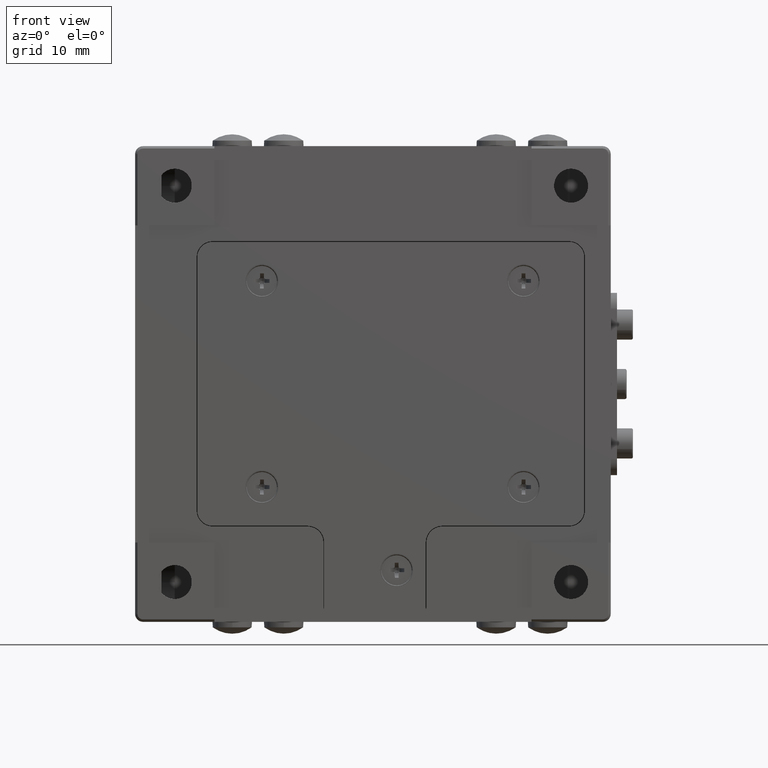
[diagram: clean part render]
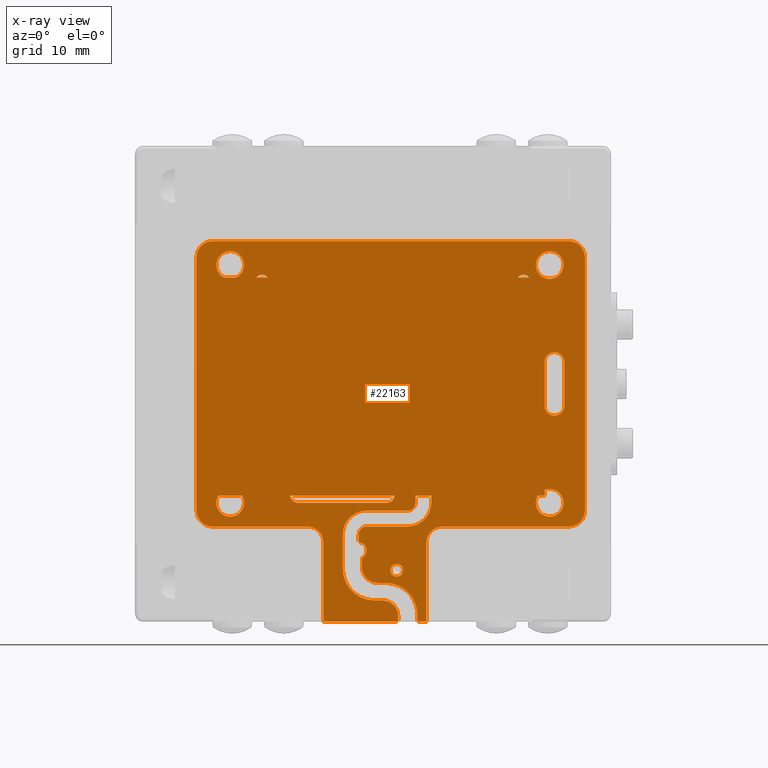
[diagram: x-ray — body ghosted, one internal face saturated and labeled with its STEP entity id]
A machine part, front view, then the same camera in x-ray: the body is ghosted and one INTERNAL B-rep face — a face not visible from any outside direction — is saturated and labeled: STEP entity #22163.
In plain terms, the highlighted planar face has unit normal (0, -1, 0).
Its self-contained STEP definition (entity closure, byte-faithful):
#24 = EDGE_CURVE ( 'NONE', #22137, #21360, #21214, .T. ) ;
#46 = FACE_BOUND ( 'NONE', #323, .T. ) ;
#59 = ORIENTED_EDGE ( 'NONE', *, *, #9527, .F. ) ;
#83 = DIRECTION ( 'NONE',  ( 0.000000000000000000, 0.000000000000000000, -1.000000000000000000 ) ) ;
#89 = EDGE_CURVE ( 'NONE', #21244, #18895, #23610, .T. ) ;
#93 = CARTESIAN_POINT ( 'NONE',  ( 34.37202194154569668, 3.250000000000000000, -47.98835187819889825 ) ) ;
#105 = CIRCLE ( 'NONE', #8555, 2.000000000000000000 ) ;
#111 = LINE ( 'NONE', #7301, #13982 ) ;
#156 = ORIENTED_EDGE ( 'NONE', *, *, #23745, .T. ) ;
#249 = CIRCLE ( 'NONE', #19995, 0.3000000000000016542 ) ;
#323 = EDGE_LOOP ( 'NONE', ( #16622, #18211, #11648, #5550 ) ) ;
#367 = DIRECTION ( 'NONE',  ( 0.000000000000000000, 0.000000000000000000, 1.000000000000000000 ) ) ;
#398 = LINE ( 'NONE', #20981, #2266 ) ;
#415 = VECTOR ( 'NONE', #8811, 1000.000000000000000 ) ;
#439 = CARTESIAN_POINT ( 'NONE',  ( 34.37202194154569668, 3.250000000000000000, -45.98835187819889825 ) ) ;
#447 = CIRCLE ( 'NONE', #4092, 1.250000000000001110 ) ;
#548 = CARTESIAN_POINT ( 'NONE',  ( 52.29999999999999716, 3.250000000000000000, -45.00000000000000000 ) ) ;
#652 = DIRECTION ( 'NONE',  ( 0.000000000000000000, 1.000000000000000000, 0.000000000000000000 ) ) ;
#717 = DIRECTION ( 'NONE',  ( 1.000000000000000000, 0.000000000000000000, 0.000000000000000000 ) ) ;
#781 = VECTOR ( 'NONE', #15501, 1000.000000000000000 ) ;
#840 = DIRECTION ( 'NONE',  ( 0.000000000000000000, 0.000000000000000000, -1.000000000000000000 ) ) ;
#848 = CARTESIAN_POINT ( 'NONE',  ( 48.31890534461459907, 3.250000000000000000, -16.58034529621910025 ) ) ;
#880 = DIRECTION ( 'NONE',  ( 0.000000000000000000, -1.000000000000000000, 0.000000000000000000 ) ) ;
#921 = VERTEX_POINT ( 'NONE', #1974 ) ;
#966 = VERTEX_POINT ( 'NONE', #19758 ) ;
#1002 = DIRECTION ( 'NONE',  ( 0.000000000000000000, -1.000000000000000000, 0.000000000000000000 ) ) ;
#1008 = VERTEX_POINT ( 'NONE', #2349 ) ;
#1025 = DIRECTION ( 'NONE',  ( 0.000000000000000000, -1.000000000000000000, 0.000000000000000000 ) ) ;
#1130 = EDGE_CURVE ( 'NONE', #11185, #5857, #23332, .T. ) ;
#1223 = DIRECTION ( 'NONE',  ( 0.000000000000000000, 0.000000000000000000, -1.000000000000000000 ) ) ;
#1267 = EDGE_CURVE ( 'NONE', #14080, #23092, #4749, .T. ) ;
#1313 = CARTESIAN_POINT ( 'NONE',  ( 7.750000000000000000, 3.250000000000000000, -14.00000000000000000 ) ) ;
#1369 = CARTESIAN_POINT ( 'NONE',  ( 28.50000000000000000, 3.250000000000000000, -49.73508893593270130 ) ) ;
#1372 = ORIENTED_EDGE ( 'NONE', *, *, #3487, .F. ) ;
#1418 = CIRCLE ( 'NONE', #19946, 3.999999999999996447 ) ;
#1446 = AXIS2_PLACEMENT_3D ( 'NONE', #11561, #16897, #7285 ) ;
#1456 = VECTOR ( 'NONE', #717, 1000.000000000000000 ) ;
#1560 = VERTEX_POINT ( 'NONE', #10480 ) ;
#1588 = DIRECTION ( 'NONE',  ( 0.000000000000000000, 0.000000000000000000, -1.000000000000000000 ) ) ;
#1596 = DIRECTION ( 'NONE',  ( 1.000000000000000000, 0.000000000000000000, 0.000000000000000000 ) ) ;
#1605 = EDGE_CURVE ( 'NONE', #17248, #11185, #14561, .T. ) ;
#1640 = VERTEX_POINT ( 'NONE', #16051 ) ;
#1799 = DIRECTION ( 'NONE',  ( -1.000000000000000000, 0.000000000000000000, 0.000000000000000000 ) ) ;
#1804 = CARTESIAN_POINT ( 'NONE',  ( 29.19999999999999929, 3.250000000000000000, -48.98835187819890535 ) ) ;
#1857 = CARTESIAN_POINT ( 'NONE',  ( 23.75000000000000000, 3.250000000000000000, -50.00000000000000000 ) ) ;
#1863 = LINE ( 'NONE', #3750, #9368 ) ;
#1875 = VERTEX_POINT ( 'NONE', #5935 ) ;
#1948 = FACE_BOUND ( 'NONE', #2645, .T. ) ;
#1974 = CARTESIAN_POINT ( 'NONE',  ( 28.43076923076925411, 3.250000000000000000, -50.02699148917899663 ) ) ;
#2008 = LINE ( 'NONE', #17408, #1456 ) ;
#2014 = LINE ( 'NONE', #15260, #21032 ) ;
#2082 = EDGE_CURVE ( 'NONE', #11596, #13527, #14617, .T. ) ;
#2108 = EDGE_CURVE ( 'NONE', #5857, #1875, #6144, .T. ) ;
#2133 = CARTESIAN_POINT ( 'NONE',  ( 52.29999999999999716, 3.250000000000000000, -43.25000000000000000 ) ) ;
#2165 = EDGE_CURVE ( 'NONE', #11688, #921, #249, .T. ) ;
#2181 = EDGE_CURVE ( 'NONE', #19973, #9801, #7885, .T. ) ;
#2195 = VECTOR ( 'NONE', #1596, 1000.000000000000000 ) ;
#2229 = VERTEX_POINT ( 'NONE', #1857 ) ;
#2266 = VECTOR ( 'NONE', #1799, 1000.000000000000000 ) ;
#2270 = CIRCLE ( 'NONE', #9902, 4.000000000000003553 ) ;
#2279 = DIRECTION ( 'NONE',  ( -1.000000000000000000, 0.000000000000000000, -1.062075597536819908E-16 ) ) ;
#2349 = CARTESIAN_POINT ( 'NONE',  ( 54.14999999999999858, 3.250000000000000000, -27.24999999934235007 ) ) ;
#2411 = LINE ( 'NONE', #10077, #24530 ) ;
#2432 = ORIENTED_EDGE ( 'NONE', *, *, #10014, .F. ) ;
#2446 = VERTEX_POINT ( 'NONE', #4854 ) ;
#2497 = VERTEX_POINT ( 'NONE', #14325 ) ;
#2547 = CARTESIAN_POINT ( 'NONE',  ( 19.55411604357869848, 3.250000000000000000, -44.09063743896764720 ) ) ;
#2591 = CARTESIAN_POINT ( 'NONE',  ( 30.20000000000000284, 3.250000000000000000, -57.30586225072890016 ) ) ;
#2592 = DIRECTION ( 'NONE',  ( 0.000000000000000000, -1.000000000000000000, 0.000000000000000000 ) ) ;
#2645 = EDGE_LOOP ( 'NONE', ( #3088, #10710 ) ) ;
#2654 = DIRECTION ( 'NONE',  ( 0.000000000000000000, 0.000000000000000000, 1.000000000000000000 ) ) ;
#2668 = DIRECTION ( 'NONE',  ( 0.000000000000000000, 1.000000000000000000, 0.000000000000000000 ) ) ;
#2674 = EDGE_CURVE ( 'NONE', #17248, #23886, #9391, .T. ) ;
#2694 = CARTESIAN_POINT ( 'NONE',  ( 13.49517882963634108, 3.250000000000000000, -44.09063743896764720 ) ) ;
#2784 = AXIS2_PLACEMENT_3D ( 'NONE', #5455, #7100, #22903 ) ;
#2907 = DIRECTION ( 'NONE',  ( 0.000000000000000000, -1.000000000000000000, 0.000000000000000000 ) ) ;
#2979 = DIRECTION ( 'NONE',  ( -6.308085367188390438E-15, 0.000000000000000000, 1.000000000000000000 ) ) ;
#2981 = VERTEX_POINT ( 'NONE', #19984 ) ;
#2982 = LINE ( 'NONE', #14702, #19149 ) ;
#3003 = DIRECTION ( 'NONE',  ( 0.000000000000000000, -1.000000000000000000, 0.000000000000000000 ) ) ;
#3031 = CARTESIAN_POINT ( 'NONE',  ( 56.75000000000000000, 3.250000000000000000, -48.00000000000000000 ) ) ;
#3063 = CIRCLE ( 'NONE', #15948, 0.7999999999999882760 ) ;
#3079 = DIRECTION ( 'NONE',  ( 1.000000000000000000, 0.000000000000000000, 0.000000000000000000 ) ) ;
#3088 = ORIENTED_EDGE ( 'NONE', *, *, #8812, .T. ) ;
#3130 = VERTEX_POINT ( 'NONE', #6963 ) ;
#3167 = CARTESIAN_POINT ( 'NONE',  ( 12.00000000000000000, 3.250000000000000000, -45.00000000000000000 ) ) ;
#3196 = AXIS2_PLACEMENT_3D ( 'NONE', #6927, #2907, #18804 ) ;
#3232 = VERTEX_POINT ( 'NONE', #21961 ) ;
#3326 = CARTESIAN_POINT ( 'NONE',  ( 7.228523424522479424, 3.250000000000000000, -16.58034529621910025 ) ) ;
#3350 = CARTESIAN_POINT ( 'NONE',  ( 7.228523424522479424, 3.250000000000000000, -44.09063743896764720 ) ) ;
#3354 = CARTESIAN_POINT ( 'NONE',  ( 26.20000000000000284, 3.250000000000000000, -51.00000000000000000 ) ) ;
#3358 = DIRECTION ( 'NONE',  ( 0.000000000000000000, 0.000000000000000000, -1.000000000000000000 ) ) ;
#3468 = EDGE_CURVE ( 'NONE', #14080, #7985, #23031, .T. ) ;
#3477 = AXIS2_PLACEMENT_3D ( 'NONE', #17011, #5503, #7512 ) ;
#3487 = EDGE_CURVE ( 'NONE', #20598, #15099, #11384, .T. ) ;
#3561 = CARTESIAN_POINT ( 'NONE',  ( 23.75000000000000000, 3.250000000000000000, -60.00000000000000000 ) ) ;
#3592 = CARTESIAN_POINT ( 'NONE',  ( 35.37202194154569668, 3.250000000000000000, -42.50000000000000000 ) ) ;
#3750 = CARTESIAN_POINT ( 'NONE',  ( 30.59999999999999787, 3.250000000000000000, -55.10618472869440154 ) ) ;
#3765 = CARTESIAN_POINT ( 'NONE',  ( 31.19999999999999929, 3.250000000000000000, -59.30586225072890016 ) ) ;
#3803 = LINE ( 'NONE', #9481, #4524 ) ;
#3825 = FACE_OUTER_BOUND ( 'NONE', #23667, .T. ) ;
#3884 = DIRECTION ( 'NONE',  ( 0.000000000000000000, -1.000000000000000000, 0.000000000000000000 ) ) ;
#3933 = CARTESIAN_POINT ( 'NONE',  ( 26.20000000000000284, 3.250000000000000000, -48.98835187819890535 ) ) ;
#3950 = CARTESIAN_POINT ( 'NONE',  ( 30.20000000000000284, 3.250000000000000000, -53.30586225072890016 ) ) ;
#3957 = DIRECTION ( 'NONE',  ( 0.000000000000000000, 0.000000000000000000, -1.000000000000000000 ) ) ;
#4092 = AXIS2_PLACEMENT_3D ( 'NONE', #5282, #1025, #22353 ) ;
#4102 = CIRCLE ( 'NONE', #21450, 0.7999999999999882760 ) ;
#4122 = DIRECTION ( 'NONE',  ( 0.000000000000000000, 0.000000000000000000, -1.000000000000000000 ) ) ;
#4145 = ORIENTED_EDGE ( 'NONE', *, *, #15741, .T. ) ;
#4157 = EDGE_CURVE ( 'NONE', #7495, #21585, #2411, .T. ) ;
#4168 = EDGE_CURVE ( 'NONE', #11596, #8699, #8317, .T. ) ;
#4260 = AXIS2_PLACEMENT_3D ( 'NONE', #10364, #6708, #21761 ) ;
#4267 = AXIS2_PLACEMENT_3D ( 'NONE', #14129, #23491, #17431 ) ;
#4325 = DIRECTION ( 'NONE',  ( 0.000000000000000000, 0.000000000000000000, -1.000000000000000000 ) ) ;
#4369 = VERTEX_POINT ( 'NONE', #11573 ) ;
#4370 = CARTESIAN_POINT ( 'NONE',  ( 35.60000000000000142, 3.250000000000000000, -59.70000000000000284 ) ) ;
#4524 = VECTOR ( 'NONE', #22894, 1000.000000000000000 ) ;
#4538 = AXIS2_PLACEMENT_3D ( 'NONE', #5364, #11043, #13205 ) ;
#4545 = DIRECTION ( 'NONE',  ( 0.000000000000000000, -1.000000000000000000, 0.000000000000000000 ) ) ;
#4549 = CARTESIAN_POINT ( 'NONE',  ( 38.75000000000000000, 3.250000000000000000, -50.00000000000000000 ) ) ;
#4730 = DIRECTION ( 'NONE',  ( 0.000000000000000000, -1.000000000000000000, 0.000000000000000000 ) ) ;
#4749 = CIRCLE ( 'NONE', #7565, 1.000000000000000888 ) ;
#4813 = DIRECTION ( 'NONE',  ( 0.000000000000000000, 0.000000000000000000, -1.000000000000000000 ) ) ;
#4854 = CARTESIAN_POINT ( 'NONE',  ( 33.00000000000000000, 3.250000000000000000, -54.30000000000000426 ) ) ;
#4957 = VERTEX_POINT ( 'NONE', #6122 ) ;
#4988 = DIRECTION ( 'NONE',  ( 0.000000000000000000, 1.000000000000000000, 0.000000000000000000 ) ) ;
#5032 = VECTOR ( 'NONE', #20976, 1000.000000000000000 ) ;
#5041 = CARTESIAN_POINT ( 'NONE',  ( 51.68112963079270372, 3.250000000000000000, -16.58034529621910025 ) ) ;
#5067 = CARTESIAN_POINT ( 'NONE',  ( 35.60000000000000142, 3.250000000000000000, -59.10618472869440154 ) ) ;
#5282 = CARTESIAN_POINT ( 'NONE',  ( 52.90000000000000568, 3.250000000000000000, -32.74999999934235007 ) ) ;
#5323 = EDGE_CURVE ( 'NONE', #17141, #5889, #13302, .T. ) ;
#5357 = LINE ( 'NONE', #13067, #24839 ) ;
#5364 = CARTESIAN_POINT ( 'NONE',  ( 12.00000000000000000, 3.250000000000000000, -15.00000000000000000 ) ) ;
#5377 = CARTESIAN_POINT ( 'NONE',  ( 51.68112963079270372, 3.250000000000000000, -26.97277261420695282 ) ) ;
#5455 = CARTESIAN_POINT ( 'NONE',  ( 32.89999999999999858, 3.250000000000000000, -59.70000000000000284 ) ) ;
#5503 = DIRECTION ( 'NONE',  ( 0.000000000000000000, -1.000000000000000000, 0.000000000000000000 ) ) ;
#5530 = LINE ( 'NONE', #7179, #15540 ) ;
#5539 = EDGE_CURVE ( 'NONE', #9441, #17579, #447, .T. ) ;
#5550 = ORIENTED_EDGE ( 'NONE', *, *, #6914, .F. ) ;
#5594 = DIRECTION ( 'NONE',  ( 7.763230419829150531E-15, 0.000000000000000000, 1.000000000000000000 ) ) ;
#5617 = DIRECTION ( 'NONE',  ( 0.000000000000000000, 0.000000000000000000, -1.000000000000000000 ) ) ;
#5698 = ORIENTED_EDGE ( 'NONE', *, *, #1267, .T. ) ;
#5702 = CARTESIAN_POINT ( 'NONE',  ( 35.37202194154569668, 3.250000000000000000, -45.98835187819889825 ) ) ;
#5737 = AXIS2_PLACEMENT_3D ( 'NONE', #20914, #22692, #5617 ) ;
#5780 = LINE ( 'NONE', #6040, #781 ) ;
#5836 = CARTESIAN_POINT ( 'NONE',  ( 0.000000000000000000, 3.250000000000000000, 0.000000000000000000 ) ) ;
#5850 = EDGE_CURVE ( 'NONE', #17141, #5889, #20975, .T. ) ;
#5857 = VERTEX_POINT ( 'NONE', #2133 ) ;
#5889 = VERTEX_POINT ( 'NONE', #15748 ) ;
#5897 = ORIENTED_EDGE ( 'NONE', *, *, #21773, .T. ) ;
#5935 = CARTESIAN_POINT ( 'NONE',  ( 51.68112963079270372, 3.250000000000000000, -43.36308232763000348 ) ) ;
#5958 = VERTEX_POINT ( 'NONE', #8677 ) ;
#6029 = EDGE_CURVE ( 'NONE', #15549, #22370, #12333, .T. ) ;
#6040 = CARTESIAN_POINT ( 'NONE',  ( 7.750000000000000000, 3.250000000000000000, -12.00000000000000000 ) ) ;
#6080 = VERTEX_POINT ( 'NONE', #20426 ) ;
#6105 = VERTEX_POINT ( 'NONE', #9421 ) ;
#6111 = VERTEX_POINT ( 'NONE', #7638 ) ;
#6122 = CARTESIAN_POINT ( 'NONE',  ( 11.24832936420389906, 3.250000000000000000, -16.58034529621910025 ) ) ;
#6144 = CIRCLE ( 'NONE', #13806, 1.750000000000001554 ) ;
#6153 = ORIENTED_EDGE ( 'NONE', *, *, #9767, .T. ) ;
#6183 = DIRECTION ( 'NONE',  ( 0.000000000000000000, 0.000000000000000000, -1.000000000000000000 ) ) ;
#6256 = ORIENTED_EDGE ( 'NONE', *, *, #24476, .F. ) ;
#6383 = CIRCLE ( 'NONE', #7586, 1.750000000000001554 ) ;
#6466 = CARTESIAN_POINT ( 'NONE',  ( 37.37202194154570378, 3.250000000000000000, -44.98835187819889825 ) ) ;
#6501 = VECTOR ( 'NONE', #7594, 1000.000000000000000 ) ;
#6691 = CARTESIAN_POINT ( 'NONE',  ( 52.29999999999999716, 3.250000000000000000, -15.00000000000000000 ) ) ;
#6708 = DIRECTION ( 'NONE',  ( 0.000000000000000000, -1.000000000000000000, 0.000000000000000000 ) ) ;
#6727 = CARTESIAN_POINT ( 'NONE',  ( 36.75000000000000000, 3.250000000000000000, -60.00000000000000000 ) ) ;
#6752 = DIRECTION ( 'NONE',  ( 0.000000000000000000, 0.000000000000000000, -1.000000000000000000 ) ) ;
#6816 = EDGE_CURVE ( 'NONE', #21348, #19572, #13130, .T. ) ;
#6914 = EDGE_CURVE ( 'NONE', #22759, #966, #7889, .T. ) ;
#6927 = CARTESIAN_POINT ( 'NONE',  ( 29.19999999999999929, 3.250000000000000000, -48.98835187819890535 ) ) ;
#6934 = AXIS2_PLACEMENT_3D ( 'NONE', #23823, #10529, #12566 ) ;
#6935 = DIRECTION ( 'NONE',  ( 0.000000000000000000, 0.000000000000000000, -1.000000000000000000 ) ) ;
#6963 = CARTESIAN_POINT ( 'NONE',  ( 33.20000000000000284, 3.250000000000000000, -59.30586225072890016 ) ) ;
#6994 = CARTESIAN_POINT ( 'NONE',  ( 50.80482117036370227, 3.250000000000000000, -44.09063743896764720 ) ) ;
#7020 = DIRECTION ( 'NONE',  ( 0.000000000000000000, 0.000000000000000000, -1.000000000000000000 ) ) ;
#7076 = EDGE_CURVE ( 'NONE', #7096, #12656, #2270, .T. ) ;
#7089 = VERTEX_POINT ( 'NONE', #1313 ) ;
#7096 = VERTEX_POINT ( 'NONE', #5067 ) ;
#7100 = DIRECTION ( 'NONE',  ( 0.000000000000000000, -1.000000000000000000, 0.000000000000000000 ) ) ;
#7156 = CARTESIAN_POINT ( 'NONE',  ( 7.228523424522479424, 3.250000000000000000, -44.09063743896764720 ) ) ;
#7157 = DIRECTION ( 'NONE',  ( 0.000000000000000000, 0.000000000000000000, 1.000000000000000000 ) ) ;
#7179 = CARTESIAN_POINT ( 'NONE',  ( 51.68112963079270372, 3.250000000000000000, -16.58034529621910025 ) ) ;
#7279 = CARTESIAN_POINT ( 'NONE',  ( 52.90000000000000568, 3.250000000000000000, -33.99999999934235007 ) ) ;
#7285 = DIRECTION ( 'NONE',  ( 0.000000000000000000, 0.000000000000000000, -1.000000000000000000 ) ) ;
#7301 = CARTESIAN_POINT ( 'NONE',  ( 7.228523424522479424, 3.250000000000000000, -16.58034529621910025 ) ) ;
#7337 = CARTESIAN_POINT ( 'NONE',  ( 31.60000000000000142, 3.250000000000000000, -59.10618472869440154 ) ) ;
#7340 = CARTESIAN_POINT ( 'NONE',  ( 51.68112963079270372, 3.250000000000000000, -44.09063743896764720 ) ) ;
#7363 = FACE_BOUND ( 'NONE', #19820, .T. ) ;
#7476 = EDGE_CURVE ( 'NONE', #1008, #18125, #9077, .T. ) ;
#7480 = FACE_BOUND ( 'NONE', #9081, .T. ) ;
#7495 = VERTEX_POINT ( 'NONE', #23342 ) ;
#7500 = VECTOR ( 'NONE', #14512, 1000.000000000000000 ) ;
#7512 = DIRECTION ( 'NONE',  ( 0.000000000000000000, 0.000000000000000000, -1.000000000000000000 ) ) ;
#7565 = AXIS2_PLACEMENT_3D ( 'NONE', #24565, #16968, #1588 ) ;
#7586 = AXIS2_PLACEMENT_3D ( 'NONE', #3167, #12503, #10593 ) ;
#7594 = DIRECTION ( 'NONE',  ( -1.000000000000000000, 0.000000000000000000, 0.000000000000000000 ) ) ;
#7638 = CARTESIAN_POINT ( 'NONE',  ( 51.68112963079270372, 3.250000000000000000, -33.02722738447675255 ) ) ;
#7713 = AXIS2_PLACEMENT_3D ( 'NONE', #22207, #3003, #18659 ) ;
#7734 = FACE_BOUND ( 'NONE', #20247, .T. ) ;
#7807 = VERTEX_POINT ( 'NONE', #22103 ) ;
#7841 = EDGE_CURVE ( 'NONE', #966, #6080, #16540, .T. ) ;
#7885 = CIRCLE ( 'NONE', #3477, 0.7999999999999882760 ) ;
#7889 = CIRCLE ( 'NONE', #4260, 1.000000000000000888 ) ;
#7939 = EDGE_CURVE ( 'NONE', #24041, #3232, #111, .T. ) ;
#7974 = ORIENTED_EDGE ( 'NONE', *, *, #16624, .F. ) ;
#7985 = VERTEX_POINT ( 'NONE', #15010 ) ;
#8019 = ORIENTED_EDGE ( 'NONE', *, *, #21002, .F. ) ;
#8273 = DIRECTION ( 'NONE',  ( 0.000000000000000000, -1.000000000000000000, 0.000000000000000000 ) ) ;
#8317 = LINE ( 'NONE', #16014, #13619 ) ;
#8366 = EDGE_CURVE ( 'NONE', #18395, #7096, #15195, .T. ) ;
#8427 = DIRECTION ( 'NONE',  ( 0.000000000000000000, 0.000000000000000000, -1.000000000000000000 ) ) ;
#8456 = CARTESIAN_POINT ( 'NONE',  ( 34.37202194154569668, 3.250000000000000000, -44.98835187819889825 ) ) ;
#8496 = ORIENTED_EDGE ( 'NONE', *, *, #24732, .T. ) ;
#8528 = CARTESIAN_POINT ( 'NONE',  ( 54.14999999999999858, 3.250000000000000000, -32.74999999934235007 ) ) ;
#8555 = AXIS2_PLACEMENT_3D ( 'NONE', #21423, #19898, #4122 ) ;
#8677 = CARTESIAN_POINT ( 'NONE',  ( 26.20000000000000284, 3.250000000000000000, -53.30586225072890016 ) ) ;
#8699 = VERTEX_POINT ( 'NONE', #24660 ) ;
#8811 = DIRECTION ( 'NONE',  ( 1.000000000000000000, 0.000000000000000000, 0.000000000000000000 ) ) ;
#8812 = EDGE_CURVE ( 'NONE', #19973, #9801, #398, .T. ) ;
#8872 = CARTESIAN_POINT ( 'NONE',  ( 35.89999999999999858, 3.250000000000000000, -60.00000000000000000 ) ) ;
#8888 = VERTEX_POINT ( 'NONE', #17316 ) ;
#8902 = CARTESIAN_POINT ( 'NONE',  ( 33.00000000000000000, 3.250000000000000000, -53.50000000000000000 ) ) ;
#8918 = DIRECTION ( 'NONE',  ( 0.000000000000000000, 0.000000000000000000, -1.000000000000000000 ) ) ;
#9005 = VECTOR ( 'NONE', #16466, 1000.000000000000000 ) ;
#9013 = CARTESIAN_POINT ( 'NONE',  ( 33.00000000000000000, 3.250000000000000000, -52.69999999999999574 ) ) ;
#9077 = CIRCLE ( 'NONE', #23201, 1.250000000000001110 ) ;
#9081 = EDGE_LOOP ( 'NONE', ( #5897, #16233, #2432, #12888, #15661 ) ) ;
#9102 = ORIENTED_EDGE ( 'NONE', *, *, #4157, .T. ) ;
#9108 = ORIENTED_EDGE ( 'NONE', *, *, #14724, .F. ) ;
#9145 = LINE ( 'NONE', #3592, #21972 ) ;
#9193 = EDGE_CURVE ( 'NONE', #23406, #19572, #2014, .T. ) ;
#9199 = CARTESIAN_POINT ( 'NONE',  ( 28.19999999999999929, 3.250000000000000000, -51.00000000000000000 ) ) ;
#9211 = ORIENTED_EDGE ( 'NONE', *, *, #6029, .T. ) ;
#9226 = DIRECTION ( 'NONE',  ( 0.000000000000000000, 0.000000000000000000, 1.000000000000000000 ) ) ;
#9228 = CARTESIAN_POINT ( 'NONE',  ( 28.60000000000000142, 3.250000000000000000, -52.09544511501049868 ) ) ;
#9368 = VECTOR ( 'NONE', #11435, 1000.000000000000000 ) ;
#9391 = LINE ( 'NONE', #3350, #2195 ) ;
#9421 = CARTESIAN_POINT ( 'NONE',  ( 56.75000000000000000, 3.250000000000000000, -14.00000000000000000 ) ) ;
#9441 = VERTEX_POINT ( 'NONE', #7279 ) ;
#9443 = DIRECTION ( 'NONE',  ( -1.000000000000000000, 0.000000000000000000, 0.000000000000000000 ) ) ;
#9481 = CARTESIAN_POINT ( 'NONE',  ( 33.20000000000000284, 3.250000000000000000, -60.00000000000000000 ) ) ;
#9482 = EDGE_CURVE ( 'NONE', #6111, #9441, #19421, .T. ) ;
#9527 = EDGE_CURVE ( 'NONE', #2446, #15601, #4102, .T. ) ;
#9638 = CARTESIAN_POINT ( 'NONE',  ( 32.74588395642134486, 3.250000000000000000, -44.09063743896764720 ) ) ;
#9650 = EDGE_LOOP ( 'NONE', ( #18846, #10437 ) ) ;
#9722 = VERTEX_POINT ( 'NONE', #24848 ) ;
#9732 = EDGE_CURVE ( 'NONE', #12656, #9722, #1863, .T. ) ;
#9757 = CARTESIAN_POINT ( 'NONE',  ( 28.89999999999999858, 3.250000000000000000, -52.09544511501049868 ) ) ;
#9767 = EDGE_CURVE ( 'NONE', #18895, #7089, #105, .T. ) ;
#9801 = VERTEX_POINT ( 'NONE', #848 ) ;
#9816 = CARTESIAN_POINT ( 'NONE',  ( 56.75000000000000000, 3.250000000000000000, -46.00000000000000000 ) ) ;
#9902 = AXIS2_PLACEMENT_3D ( 'NONE', #7337, #18962, #12776 ) ;
#9995 = ORIENTED_EDGE ( 'NONE', *, *, #6816, .T. ) ;
#10014 = EDGE_CURVE ( 'NONE', #17579, #1008, #20523, .T. ) ;
#10018 = DIRECTION ( 'NONE',  ( 0.000000000000000000, -1.000000000000000000, 0.000000000000000000 ) ) ;
#10069 = EDGE_LOOP ( 'NONE', ( #22867, #17056 ) ) ;
#10077 = CARTESIAN_POINT ( 'NONE',  ( 36.75000000000000000, 3.250000000000000000, -48.00000000000000000 ) ) ;
#10112 = VECTOR ( 'NONE', #11259, 1000.000000000000000 ) ;
#10157 = VERTEX_POINT ( 'NONE', #3933 ) ;
#10364 = CARTESIAN_POINT ( 'NONE',  ( 20.54999999999999716, 3.250000000000000000, -44.00000000000000000 ) ) ;
#10380 = LINE ( 'NONE', #14188, #23122 ) ;
#10437 = ORIENTED_EDGE ( 'NONE', *, *, #24411, .F. ) ;
#10459 = EDGE_CURVE ( 'NONE', #22137, #24041, #12875, .T. ) ;
#10480 = CARTESIAN_POINT ( 'NONE',  ( 32.89999999999999858, 3.250000000000000000, -60.00000000000000000 ) ) ;
#10509 = ORIENTED_EDGE ( 'NONE', *, *, #22840, .T. ) ;
#10529 = DIRECTION ( 'NONE',  ( 0.000000000000000000, -1.000000000000000000, 0.000000000000000000 ) ) ;
#10531 = DIRECTION ( 'NONE',  ( 1.000000000000000000, 0.000000000000000000, 0.000000000000000000 ) ) ;
#10533 = EDGE_CURVE ( 'NONE', #23123, #6105, #24757, .T. ) ;
#10551 = CARTESIAN_POINT ( 'NONE',  ( 7.228523424522479424, 3.250000000000000000, -44.09063743896764720 ) ) ;
#10589 = VECTOR ( 'NONE', #10818, 1000.000000000000000 ) ;
#10593 = DIRECTION ( 'NONE',  ( 0.000000000000000000, 0.000000000000000000, -1.000000000000000000 ) ) ;
#10710 = ORIENTED_EDGE ( 'NONE', *, *, #2181, .F. ) ;
#10811 = VERTEX_POINT ( 'NONE', #16643 ) ;
#10818 = DIRECTION ( 'NONE',  ( 1.000000000000000000, 0.000000000000000000, 0.000000000000000000 ) ) ;
#10862 = EDGE_CURVE ( 'NONE', #22759, #20073, #22587, .T. ) ;
#10881 = CARTESIAN_POINT ( 'NONE',  ( 12.00000000000000000, 3.250000000000000000, -46.75000000000000000 ) ) ;
#10908 = ORIENTED_EDGE ( 'NONE', *, *, #12203, .T. ) ;
#11043 = DIRECTION ( 'NONE',  ( 0.000000000000000000, -1.000000000000000000, 0.000000000000000000 ) ) ;
#11097 = EDGE_CURVE ( 'NONE', #15613, #22370, #22338, .T. ) ;
#11185 = VERTEX_POINT ( 'NONE', #16231 ) ;
#11208 = EDGE_CURVE ( 'NONE', #11564, #13527, #20528, .T. ) ;
#11259 = DIRECTION ( 'NONE',  ( 1.000000000000000000, 0.000000000000000000, -6.938893903907390094E-15 ) ) ;
#11321 = AXIS2_PLACEMENT_3D ( 'NONE', #4549, #2668, #6935 ) ;
#11384 = LINE ( 'NONE', #19092, #10112 ) ;
#11422 = AXIS2_PLACEMENT_3D ( 'NONE', #15727, #8273, #12194 ) ;
#11435 = DIRECTION ( 'NONE',  ( -1.000000000000000000, 0.000000000000000000, 6.938893903907220489E-15 ) ) ;
#11452 = DIRECTION ( 'NONE',  ( 0.000000000000000000, 0.000000000000000000, -1.000000000000000000 ) ) ;
#11556 = CARTESIAN_POINT ( 'NONE',  ( 36.75000000000000000, 3.250000000000000000, -50.00000000000000000 ) ) ;
#11561 = CARTESIAN_POINT ( 'NONE',  ( 9.750000000000000000, 3.250000000000000000, -46.00000000000000000 ) ) ;
#11564 = VERTEX_POINT ( 'NONE', #11784 ) ;
#11573 = CARTESIAN_POINT ( 'NONE',  ( 7.750000000000000000, 3.250000000000000000, -46.00000000000000000 ) ) ;
#11596 = VERTEX_POINT ( 'NONE', #6466 ) ;
#11648 = ORIENTED_EDGE ( 'NONE', *, *, #7841, .F. ) ;
#11660 = CARTESIAN_POINT ( 'NONE',  ( 49.68109465538540093, 3.250000000000000000, -16.58034529621910025 ) ) ;
#11676 = ORIENTED_EDGE ( 'NONE', *, *, #2108, .F. ) ;
#11688 = VERTEX_POINT ( 'NONE', #20123 ) ;
#11784 = CARTESIAN_POINT ( 'NONE',  ( 29.19999999999999929, 3.250000000000000000, -47.98835187819889825 ) ) ;
#11830 = DIRECTION ( 'NONE',  ( 0.000000000000000000, -1.000000000000000000, 0.000000000000000000 ) ) ;
#11855 = ORIENTED_EDGE ( 'NONE', *, *, #19842, .T. ) ;
#11862 = ORIENTED_EDGE ( 'NONE', *, *, #24, .F. ) ;
#12030 = AXIS2_PLACEMENT_3D ( 'NONE', #20137, #2592, #15954 ) ;
#12069 = AXIS2_PLACEMENT_3D ( 'NONE', #3765, #24748, #11452 ) ;
#12108 = CARTESIAN_POINT ( 'NONE',  ( 56.75000000000000000, 3.250000000000000000, -12.00000000000000000 ) ) ;
#12194 = DIRECTION ( 'NONE',  ( 0.000000000000000000, 0.000000000000000000, -1.000000000000000000 ) ) ;
#12203 = EDGE_CURVE ( 'NONE', #4369, #24741, #22802, .T. ) ;
#12207 = VECTOR ( 'NONE', #9226, 1000.000000000000000 ) ;
#12221 = EDGE_CURVE ( 'NONE', #11688, #2497, #15114, .T. ) ;
#12288 = CARTESIAN_POINT ( 'NONE',  ( 9.750000000000000000, 3.250000000000000000, -48.00000000000000000 ) ) ;
#12331 = VECTOR ( 'NONE', #2279, 1000.000000000000000 ) ;
#12333 = LINE ( 'NONE', #10551, #415 ) ;
#12503 = DIRECTION ( 'NONE',  ( 0.000000000000000000, -1.000000000000000000, 0.000000000000000000 ) ) ;
#12566 = DIRECTION ( 'NONE',  ( 0.000000000000000000, 0.000000000000000000, -1.000000000000000000 ) ) ;
#12592 = DIRECTION ( 'NONE',  ( 0.000000000000000000, 0.000000000000000000, -1.000000000000000000 ) ) ;
#12630 = DIRECTION ( 'NONE',  ( 0.000000000000000000, -1.000000000000000000, 0.000000000000000000 ) ) ;
#12653 = EDGE_CURVE ( 'NONE', #10811, #1560, #5357, .T. ) ;
#12656 = VERTEX_POINT ( 'NONE', #14837 ) ;
#12776 = DIRECTION ( 'NONE',  ( 0.000000000000000000, 0.000000000000000000, 1.000000000000000000 ) ) ;
#12830 = AXIS2_PLACEMENT_3D ( 'NONE', #13815, #10018, #23544 ) ;
#12845 = ORIENTED_EDGE ( 'NONE', *, *, #2082, .T. ) ;
#12875 = LINE ( 'NONE', #5041, #12207 ) ;
#12883 = CIRCLE ( 'NONE', #12069, 2.000000000000001776 ) ;
#12888 = ORIENTED_EDGE ( 'NONE', *, *, #5539, .F. ) ;
#12947 = DIRECTION ( 'NONE',  ( 1.000000000000000000, 0.000000000000000000, 0.000000000000000000 ) ) ;
#13019 = ORIENTED_EDGE ( 'NONE', *, *, #10459, .T. ) ;
#13067 = CARTESIAN_POINT ( 'NONE',  ( 23.75000000000000000, 3.250000000000000000, -60.00000000000000000 ) ) ;
#13130 = CIRCLE ( 'NONE', #17987, 0.3000000000000016542 ) ;
#13135 = EDGE_CURVE ( 'NONE', #7807, #4957, #16579, .T. ) ;
#13153 = ORIENTED_EDGE ( 'NONE', *, *, #4168, .F. ) ;
#13205 = DIRECTION ( 'NONE',  ( 0.000000000000000000, 0.000000000000000000, -1.000000000000000000 ) ) ;
#13247 = CIRCLE ( 'NONE', #2784, 0.3000000000000016542 ) ;
#13272 = LINE ( 'NONE', #3561, #5032 ) ;
#13302 = LINE ( 'NONE', #16719, #23430 ) ;
#13444 = VECTOR ( 'NONE', #10531, 1000.000000000000000 ) ;
#13452 = CIRCLE ( 'NONE', #23150, 2.000000000000001776 ) ;
#13527 = VERTEX_POINT ( 'NONE', #93 ) ;
#13619 = VECTOR ( 'NONE', #2654, 1000.000000000000000 ) ;
#13734 = DIRECTION ( 'NONE',  ( 0.000000000000000000, -1.000000000000000000, 0.000000000000000000 ) ) ;
#13789 = EDGE_CURVE ( 'NONE', #2981, #2229, #19935, .T. ) ;
#13806 = AXIS2_PLACEMENT_3D ( 'NONE', #18527, #4545, #7020 ) ;
#13815 = CARTESIAN_POINT ( 'NONE',  ( 28.19999999999999929, 3.250000000000000000, -51.00000000000000000 ) ) ;
#13871 = AXIS2_PLACEMENT_3D ( 'NONE', #16235, #4988, #8918 ) ;
#13903 = ORIENTED_EDGE ( 'NONE', *, *, #19906, .T. ) ;
#13982 = VECTOR ( 'NONE', #9443, 1000.000000000000000 ) ;
#14080 = VERTEX_POINT ( 'NONE', #439 ) ;
#14129 = CARTESIAN_POINT ( 'NONE',  ( 52.29999999999999716, 3.250000000000000000, -15.00000000000000000 ) ) ;
#14188 = CARTESIAN_POINT ( 'NONE',  ( 23.75000000000000000, 3.250000000000000000, -48.00000000000000000 ) ) ;
#14190 = VERTEX_POINT ( 'NONE', #15822 ) ;
#14325 = CARTESIAN_POINT ( 'NONE',  ( 28.19999999999999929, 3.250000000000000000, -48.98835187819890535 ) ) ;
#14340 = ORIENTED_EDGE ( 'NONE', *, *, #16449, .T. ) ;
#14362 = DIRECTION ( 'NONE',  ( 0.000000000000000000, 0.000000000000000000, -1.000000000000000000 ) ) ;
#14476 = ORIENTED_EDGE ( 'NONE', *, *, #1130, .F. ) ;
#14512 = DIRECTION ( 'NONE',  ( 1.000000000000000000, 0.000000000000000000, -6.195440985631460248E-16 ) ) ;
#14561 = CIRCLE ( 'NONE', #21024, 1.750000000000001554 ) ;
#14617 = CIRCLE ( 'NONE', #17434, 3.000000000000002665 ) ;
#14702 = CARTESIAN_POINT ( 'NONE',  ( 23.75000000000000000, 3.250000000000000000, -60.00000000000000000 ) ) ;
#14724 = EDGE_CURVE ( 'NONE', #8888, #3232, #18879, .T. ) ;
#14730 = CARTESIAN_POINT ( 'NONE',  ( 33.00000000000000000, 3.250000000000000000, -53.50000000000000000 ) ) ;
#14784 = CARTESIAN_POINT ( 'NONE',  ( 28.73846153846150031, 3.250000000000000000, -51.84265008846959688 ) ) ;
#14837 = CARTESIAN_POINT ( 'NONE',  ( 31.60000000000000142, 3.250000000000000000, -55.10618472869440154 ) ) ;
#14865 = CARTESIAN_POINT ( 'NONE',  ( 28.60000000000000142, 3.250000000000000000, -53.10618472869440154 ) ) ;
#14959 = DIRECTION ( 'NONE',  ( 0.000000000000000000, -1.000000000000000000, 0.000000000000000000 ) ) ;
#15002 = ORIENTED_EDGE ( 'NONE', *, *, #2165, .T. ) ;
#15010 = CARTESIAN_POINT ( 'NONE',  ( 29.19999999999999929, 3.250000000000000000, -45.98835187819889825 ) ) ;
#15070 = FACE_BOUND ( 'NONE', #9650, .T. ) ;
#15099 = VERTEX_POINT ( 'NONE', #22440 ) ;
#15114 = LINE ( 'NONE', #9199, #15530 ) ;
#15154 = EDGE_LOOP ( 'NONE', ( #18544, #9108, #20701, #11862, #13019 ) ) ;
#15164 = CARTESIAN_POINT ( 'NONE',  ( 54.75000000000000000, 3.250000000000000000, -12.00000000000000000 ) ) ;
#15195 = LINE ( 'NONE', #22917, #24496 ) ;
#15260 = CARTESIAN_POINT ( 'NONE',  ( 28.60000000000000142, 3.250000000000000000, -51.00000000000000000 ) ) ;
#15295 = AXIS2_PLACEMENT_3D ( 'NONE', #21941, #13734, #367 ) ;
#15345 = DIRECTION ( 'NONE',  ( 0.000000000000000000, -1.000000000000000000, 0.000000000000000000 ) ) ;
#15440 = FACE_BOUND ( 'NONE', #22344, .T. ) ;
#15455 = ORIENTED_EDGE ( 'NONE', *, *, #18906, .T. ) ;
#15501 = DIRECTION ( 'NONE',  ( 1.204669080539449837E-16, 0.000000000000000000, -1.000000000000000000 ) ) ;
#15511 = EDGE_CURVE ( 'NONE', #21348, #921, #23724, .T. ) ;
#15530 = VECTOR ( 'NONE', #7157, 1000.000000000000000 ) ;
#15540 = VECTOR ( 'NONE', #18681, 1000.000000000000000 ) ;
#15549 = VERTEX_POINT ( 'NONE', #16076 ) ;
#15601 = VERTEX_POINT ( 'NONE', #9013 ) ;
#15613 = VERTEX_POINT ( 'NONE', #10881 ) ;
#15661 = ORIENTED_EDGE ( 'NONE', *, *, #9482, .F. ) ;
#15727 = CARTESIAN_POINT ( 'NONE',  ( 12.00000000000000000, 3.250000000000000000, -45.00000000000000000 ) ) ;
#15741 = EDGE_CURVE ( 'NONE', #1560, #1640, #13247, .T. ) ;
#15748 = CARTESIAN_POINT ( 'NONE',  ( 15.31890534461459907, 3.250000000000000000, -16.58034529621910025 ) ) ;
#15815 = DIRECTION ( 'NONE',  ( 0.000000000000000000, 0.000000000000000000, 1.000000000000000000 ) ) ;
#15822 = CARTESIAN_POINT ( 'NONE',  ( 36.75000000000000000, 3.250000000000000000, -60.00000000000000000 ) ) ;
#15854 = EDGE_CURVE ( 'NONE', #15549, #15613, #6383, .T. ) ;
#15869 = CARTESIAN_POINT ( 'NONE',  ( 52.29999999999999716, 3.250000000000000000, -15.00000000000000000 ) ) ;
#15921 = DIRECTION ( 'NONE',  ( 0.000000000000000000, -1.000000000000000000, 0.000000000000000000 ) ) ;
#15934 = CARTESIAN_POINT ( 'NONE',  ( 51.68112963079270372, 3.250000000000000000, -16.58034529621910025 ) ) ;
#15948 = AXIS2_PLACEMENT_3D ( 'NONE', #8902, #4730, #840 ) ;
#15954 = DIRECTION ( 'NONE',  ( 0.000000000000000000, 0.000000000000000000, -1.000000000000000000 ) ) ;
#16014 = CARTESIAN_POINT ( 'NONE',  ( 37.37202194154570378, 3.250000000000000000, -40.50000000000000000 ) ) ;
#16051 = CARTESIAN_POINT ( 'NONE',  ( 33.20000000000000284, 3.250000000000000000, -59.70000000000000284 ) ) ;
#16076 = CARTESIAN_POINT ( 'NONE',  ( 10.50482117036366070, 3.250000000000000000, -44.09063743896764720 ) ) ;
#16086 = ORIENTED_EDGE ( 'NONE', *, *, #15854, .F. ) ;
#16204 = VECTOR ( 'NONE', #2979, 1000.000000000000000 ) ;
#16231 = CARTESIAN_POINT ( 'NONE',  ( 52.29999999999999716, 3.250000000000000000, -46.75000000000000000 ) ) ;
#16233 = ORIENTED_EDGE ( 'NONE', *, *, #7476, .F. ) ;
#16235 = CARTESIAN_POINT ( 'NONE',  ( 21.75000000000000000, 3.250000000000000000, -50.00000000000000000 ) ) ;
#16449 = EDGE_CURVE ( 'NONE', #11564, #2497, #24975, .T. ) ;
#16466 = DIRECTION ( 'NONE',  ( 0.000000000000000000, 0.000000000000000000, 1.000000000000000000 ) ) ;
#16540 = LINE ( 'NONE', #16786, #7500 ) ;
#16579 = LINE ( 'NONE', #3326, #22037 ) ;
#16609 = DIRECTION ( 'NONE',  ( 0.000000000000000000, 0.000000000000000000, -1.000000000000000000 ) ) ;
#16622 = ORIENTED_EDGE ( 'NONE', *, *, #10862, .T. ) ;
#16624 = EDGE_CURVE ( 'NONE', #15099, #3130, #12883, .T. ) ;
#16643 = CARTESIAN_POINT ( 'NONE',  ( 23.75000000000000000, 3.250000000000000000, -60.00000000000000000 ) ) ;
#16644 = CIRCLE ( 'NONE', #5737, 2.000000000000001776 ) ;
#16677 = EDGE_CURVE ( 'NONE', #6080, #20073, #18942, .T. ) ;
#16719 = CARTESIAN_POINT ( 'NONE',  ( 7.228523424522479424, 3.250000000000000000, -16.58034529621910025 ) ) ;
#16786 = CARTESIAN_POINT ( 'NONE',  ( 31.75000000000000000, 3.250000000000000000, -45.00000000000000000 ) ) ;
#16897 = DIRECTION ( 'NONE',  ( 0.000000000000000000, -1.000000000000000000, 0.000000000000000000 ) ) ;
#16932 = ORIENTED_EDGE ( 'NONE', *, *, #21898, .T. ) ;
#16968 = DIRECTION ( 'NONE',  ( 0.000000000000000000, -1.000000000000000000, 0.000000000000000000 ) ) ;
#16977 = CARTESIAN_POINT ( 'NONE',  ( 51.68112963079270372, 3.250000000000000000, -16.63691767237000008 ) ) ;
#17011 = CARTESIAN_POINT ( 'NONE',  ( 49.00000000000000000, 3.250000000000000000, -17.00000000000000000 ) ) ;
#17041 = DIRECTION ( 'NONE',  ( 0.000000000000000000, 0.000000000000000000, 1.000000000000000000 ) ) ;
#17056 = ORIENTED_EDGE ( 'NONE', *, *, #5850, .F. ) ;
#17058 = CIRCLE ( 'NONE', #4538, 1.750000000000001554 ) ;
#17127 = VERTEX_POINT ( 'NONE', #23318 ) ;
#17141 = VERTEX_POINT ( 'NONE', #19511 ) ;
#17248 = VERTEX_POINT ( 'NONE', #6994 ) ;
#17316 = CARTESIAN_POINT ( 'NONE',  ( 52.29999999999999716, 3.250000000000000000, -13.25000000000000000 ) ) ;
#17324 = VECTOR ( 'NONE', #16609, 1000.000000000000000 ) ;
#17342 = FACE_BOUND ( 'NONE', #15154, .T. ) ;
#17362 = ORIENTED_EDGE ( 'NONE', *, *, #11097, .F. ) ;
#17379 = CARTESIAN_POINT ( 'NONE',  ( 35.89999999999999858, 3.250000000000000000, -59.70000000000000284 ) ) ;
#17408 = CARTESIAN_POINT ( 'NONE',  ( 7.228523424522479424, 3.250000000000000000, -44.09063743896764720 ) ) ;
#17431 = DIRECTION ( 'NONE',  ( 0.000000000000000000, 0.000000000000000000, -1.000000000000000000 ) ) ;
#17434 = AXIS2_PLACEMENT_3D ( 'NONE', #8456, #652, #6183 ) ;
#17579 = VERTEX_POINT ( 'NONE', #21261 ) ;
#17686 = ORIENTED_EDGE ( 'NONE', *, *, #1605, .F. ) ;
#17778 = EDGE_CURVE ( 'NONE', #7089, #4369, #5780, .T. ) ;
#17795 = CARTESIAN_POINT ( 'NONE',  ( 35.37202194154569668, 3.250000000000000000, -44.98835187819889825 ) ) ;
#17839 = CIRCLE ( 'NONE', #6934, 2.000000000000000000 ) ;
#17901 = DIRECTION ( 'NONE',  ( 0.000000000000000000, 0.000000000000000000, -1.000000000000000000 ) ) ;
#17911 = CARTESIAN_POINT ( 'NONE',  ( 16.00000000000000000, 3.250000000000000000, -17.00000000000000000 ) ) ;
#17932 = DIRECTION ( 'NONE',  ( 1.000000000000000000, 0.000000000000000000, 0.000000000000000000 ) ) ;
#17950 = CARTESIAN_POINT ( 'NONE',  ( 51.68112963079270372, 3.250000000000000000, -16.58034529621910025 ) ) ;
#17987 = AXIS2_PLACEMENT_3D ( 'NONE', #9757, #21394, #21517 ) ;
#18020 = EDGE_CURVE ( 'NONE', #21360, #8888, #22568, .T. ) ;
#18125 = VERTEX_POINT ( 'NONE', #5377 ) ;
#18211 = ORIENTED_EDGE ( 'NONE', *, *, #16677, .F. ) ;
#18228 = EDGE_CURVE ( 'NONE', #18395, #22505, #24175, .T. ) ;
#18343 = AXIS2_PLACEMENT_3D ( 'NONE', #5836, #21631, #3957 ) ;
#18395 = VERTEX_POINT ( 'NONE', #4370 ) ;
#18454 = AXIS2_PLACEMENT_3D ( 'NONE', #6691, #12630, #4813 ) ;
#18518 = AXIS2_PLACEMENT_3D ( 'NONE', #17379, #24847, #83 ) ;
#18527 = CARTESIAN_POINT ( 'NONE',  ( 52.29999999999999716, 3.250000000000000000, -45.00000000000000000 ) ) ;
#18544 = ORIENTED_EDGE ( 'NONE', *, *, #7939, .T. ) ;
#18571 = EDGE_CURVE ( 'NONE', #10157, #5958, #22555, .T. ) ;
#18649 = DIRECTION ( 'NONE',  ( 0.000000000000000000, 0.000000000000000000, -1.000000000000000000 ) ) ;
#18659 = DIRECTION ( 'NONE',  ( 0.000000000000000000, 0.000000000000000000, -1.000000000000000000 ) ) ;
#18681 = DIRECTION ( 'NONE',  ( 0.000000000000000000, 0.000000000000000000, 1.000000000000000000 ) ) ;
#18720 = DIRECTION ( 'NONE',  ( -1.000000000000000000, 0.000000000000000000, 0.000000000000000000 ) ) ;
#18797 = ORIENTED_EDGE ( 'NONE', *, *, #10533, .T. ) ;
#18804 = DIRECTION ( 'NONE',  ( 0.000000000000000000, 0.000000000000000000, -1.000000000000000000 ) ) ;
#18822 = ORIENTED_EDGE ( 'NONE', *, *, #18228, .T. ) ;
#18846 = ORIENTED_EDGE ( 'NONE', *, *, #13135, .T. ) ;
#18879 = CIRCLE ( 'NONE', #18454, 1.750000000000001554 ) ;
#18895 = VERTEX_POINT ( 'NONE', #23292 ) ;
#18902 = ORIENTED_EDGE ( 'NONE', *, *, #21322, .T. ) ;
#18906 = EDGE_CURVE ( 'NONE', #23886, #1875, #21640, .T. ) ;
#18942 = CIRCLE ( 'NONE', #15295, 1.000000000000000888 ) ;
#18962 = DIRECTION ( 'NONE',  ( 0.000000000000000000, -1.000000000000000000, 0.000000000000000000 ) ) ;
#19092 = CARTESIAN_POINT ( 'NONE',  ( 30.20000000000000284, 3.250000000000000000, -57.30586225072890016 ) ) ;
#19149 = VECTOR ( 'NONE', #6752, 1000.000000000000000 ) ;
#19220 = DIRECTION ( 'NONE',  ( 0.000000000000000000, 0.000000000000000000, -1.000000000000000000 ) ) ;
#19230 = FACE_BOUND ( 'NONE', #10069, .T. ) ;
#19259 = ORIENTED_EDGE ( 'NONE', *, *, #23914, .F. ) ;
#19352 = VECTOR ( 'NONE', #15815, 1000.000000000000000 ) ;
#19421 = CIRCLE ( 'NONE', #7713, 1.250000000000001110 ) ;
#19511 = CARTESIAN_POINT ( 'NONE',  ( 16.68109465538540093, 3.250000000000000000, -16.58034529621910025 ) ) ;
#19572 = VERTEX_POINT ( 'NONE', #9228 ) ;
#19660 = CARTESIAN_POINT ( 'NONE',  ( 52.90000000000000568, 3.250000000000000000, -27.24999999934149741 ) ) ;
#19758 = CARTESIAN_POINT ( 'NONE',  ( 20.54999999999999716, 3.250000000000000000, -45.00000000000000000 ) ) ;
#19820 = EDGE_LOOP ( 'NONE', ( #15455, #11676, #14476, #17686, #19932 ) ) ;
#19842 = EDGE_CURVE ( 'NONE', #21585, #23123, #13452, .T. ) ;
#19854 = DIRECTION ( 'NONE',  ( 0.000000000000000000, -1.000000000000000000, 0.000000000000000000 ) ) ;
#19898 = DIRECTION ( 'NONE',  ( 0.000000000000000000, -1.000000000000000000, 0.000000000000000000 ) ) ;
#19906 = EDGE_CURVE ( 'NONE', #2229, #10811, #2982, .T. ) ;
#19932 = ORIENTED_EDGE ( 'NONE', *, *, #2674, .T. ) ;
#19935 = CIRCLE ( 'NONE', #13871, 2.000000000000001776 ) ;
#19946 = AXIS2_PLACEMENT_3D ( 'NONE', #3950, #19854, #4325 ) ;
#19973 = VERTEX_POINT ( 'NONE', #11660 ) ;
#19984 = CARTESIAN_POINT ( 'NONE',  ( 21.75000000000000000, 3.250000000000000000, -48.00000000000000000 ) ) ;
#19995 = AXIS2_PLACEMENT_3D ( 'NONE', #1369, #15345, #18649 ) ;
#20073 = VERTEX_POINT ( 'NONE', #9638 ) ;
#20123 = CARTESIAN_POINT ( 'NONE',  ( 28.19999999999999929, 3.250000000000000000, -49.73508893593270130 ) ) ;
#20137 = CARTESIAN_POINT ( 'NONE',  ( 52.29999999999999716, 3.250000000000000000, -45.00000000000000000 ) ) ;
#20176 = ORIENTED_EDGE ( 'NONE', *, *, #89, .T. ) ;
#20229 = DIRECTION ( 'NONE',  ( 0.000000000000000000, 0.000000000000000000, -1.000000000000000000 ) ) ;
#20247 = EDGE_LOOP ( 'NONE', ( #9211, #17362, #16086 ) ) ;
#20266 = AXIS2_PLACEMENT_3D ( 'NONE', #1804, #24325, #1223 ) ;
#20426 = CARTESIAN_POINT ( 'NONE',  ( 31.75000000000000000, 3.250000000000000000, -45.00000000000000000 ) ) ;
#20504 = LINE ( 'NONE', #6727, #9005 ) ;
#20523 = LINE ( 'NONE', #8528, #16204 ) ;
#20528 = LINE ( 'NONE', #22184, #13444 ) ;
#20598 = VERTEX_POINT ( 'NONE', #2591 ) ;
#20603 = ORIENTED_EDGE ( 'NONE', *, *, #13789, .T. ) ;
#20701 = ORIENTED_EDGE ( 'NONE', *, *, #18020, .F. ) ;
#20779 = ORIENTED_EDGE ( 'NONE', *, *, #9193, .F. ) ;
#20914 = CARTESIAN_POINT ( 'NONE',  ( 30.59999999999999787, 3.250000000000000000, -53.10618472869440154 ) ) ;
#20975 = CIRCLE ( 'NONE', #24219, 0.7999999999999882760 ) ;
#20976 = DIRECTION ( 'NONE',  ( 1.000000000000000000, 0.000000000000000000, 0.000000000000000000 ) ) ;
#20981 = CARTESIAN_POINT ( 'NONE',  ( 7.228523424522479424, 3.250000000000000000, -16.58034529621910025 ) ) ;
#21002 = EDGE_CURVE ( 'NONE', #17127, #23092, #9145, .T. ) ;
#21006 = DIRECTION ( 'NONE',  ( -1.000000000000000000, 0.000000000000000000, 0.000000000000000000 ) ) ;
#21024 = AXIS2_PLACEMENT_3D ( 'NONE', #548, #15921, #20229 ) ;
#21032 = VECTOR ( 'NONE', #17041, 1000.000000000000000 ) ;
#21071 = EDGE_CURVE ( 'NONE', #5958, #20598, #1418, .T. ) ;
#21214 = CIRCLE ( 'NONE', #4267, 1.750000000000001554 ) ;
#21244 = VERTEX_POINT ( 'NONE', #15164 ) ;
#21261 = CARTESIAN_POINT ( 'NONE',  ( 54.14999999999999858, 3.250000000000000000, -32.74999999934235007 ) ) ;
#21322 = EDGE_CURVE ( 'NONE', #22505, #14190, #13272, .T. ) ;
#21348 = VERTEX_POINT ( 'NONE', #14784 ) ;
#21360 = VERTEX_POINT ( 'NONE', #22508 ) ;
#21394 = DIRECTION ( 'NONE',  ( 0.000000000000000000, -1.000000000000000000, 0.000000000000000000 ) ) ;
#21423 = CARTESIAN_POINT ( 'NONE',  ( 9.750000000000000000, 3.250000000000000000, -14.00000000000000000 ) ) ;
#21450 = AXIS2_PLACEMENT_3D ( 'NONE', #14730, #1002, #12592 ) ;
#21474 = CIRCLE ( 'NONE', #20266, 3.000000000000002665 ) ;
#21517 = DIRECTION ( 'NONE',  ( 0.000000000000000000, 0.000000000000000000, -1.000000000000000000 ) ) ;
#21585 = VERTEX_POINT ( 'NONE', #23994 ) ;
#21631 = DIRECTION ( 'NONE',  ( 0.000000000000000000, -1.000000000000000000, 0.000000000000000000 ) ) ;
#21640 = LINE ( 'NONE', #15934, #19352 ) ;
#21679 = ORIENTED_EDGE ( 'NONE', *, *, #23885, .T. ) ;
#21741 = AXIS2_PLACEMENT_3D ( 'NONE', #15869, #880, #14362 ) ;
#21761 = DIRECTION ( 'NONE',  ( 0.000000000000000000, 0.000000000000000000, 1.000000000000000000 ) ) ;
#21773 = EDGE_CURVE ( 'NONE', #6111, #18125, #5530, .T. ) ;
#21808 = ORIENTED_EDGE ( 'NONE', *, *, #24716, .T. ) ;
#21813 = CIRCLE ( 'NONE', #11321, 2.000000000000001776 ) ;
#21861 = ORIENTED_EDGE ( 'NONE', *, *, #12653, .T. ) ;
#21898 = EDGE_CURVE ( 'NONE', #17127, #8699, #2008, .T. ) ;
#21930 = ORIENTED_EDGE ( 'NONE', *, *, #15511, .F. ) ;
#21941 = CARTESIAN_POINT ( 'NONE',  ( 31.75000000000000000, 3.250000000000000000, -44.00000000000000000 ) ) ;
#21961 = CARTESIAN_POINT ( 'NONE',  ( 51.54832936420390155, 3.250000000000000000, -16.58034529621910025 ) ) ;
#21972 = VECTOR ( 'NONE', #19220, 1000.000000000000000 ) ;
#22015 = EDGE_CURVE ( 'NONE', #15601, #2446, #3063, .T. ) ;
#22037 = VECTOR ( 'NONE', #18720, 1000.000000000000000 ) ;
#22103 = CARTESIAN_POINT ( 'NONE',  ( 12.75167063579609916, 3.250000000000000000, -16.58034529621910025 ) ) ;
#22137 = VERTEX_POINT ( 'NONE', #16977 ) ;
#22163 = ADVANCED_FACE ( 'NONE', ( #3825, #7480, #7363, #15070, #19230, #1948, #17342, #46, #7734, #15440 ), #23161, .T. ) ;
#22184 = CARTESIAN_POINT ( 'NONE',  ( 37.37202194154570378, 3.250000000000000000, -47.98835187819889825 ) ) ;
#22207 = CARTESIAN_POINT ( 'NONE',  ( 52.90000000000000568, 3.250000000000000000, -32.74999999934235007 ) ) ;
#22338 = CIRCLE ( 'NONE', #11422, 1.750000000000001554 ) ;
#22344 = EDGE_LOOP ( 'NONE', ( #59, #22881 ) ) ;
#22353 = DIRECTION ( 'NONE',  ( 0.000000000000000000, 0.000000000000000000, -1.000000000000000000 ) ) ;
#22360 = DIRECTION ( 'NONE',  ( 0.000000000000000000, 0.000000000000000000, 1.000000000000000000 ) ) ;
#22370 = VERTEX_POINT ( 'NONE', #2694 ) ;
#22440 = CARTESIAN_POINT ( 'NONE',  ( 31.19999999999999929, 3.250000000000000000, -57.30586225072890016 ) ) ;
#22505 = VERTEX_POINT ( 'NONE', #8872 ) ;
#22508 = CARTESIAN_POINT ( 'NONE',  ( 52.29999999999999716, 3.250000000000000000, -16.75000000000000000 ) ) ;
#22555 = LINE ( 'NONE', #3354, #17324 ) ;
#22568 = CIRCLE ( 'NONE', #21741, 1.750000000000001554 ) ;
#22587 = LINE ( 'NONE', #7156, #10589 ) ;
#22660 = ORIENTED_EDGE ( 'NONE', *, *, #9732, .F. ) ;
#22692 = DIRECTION ( 'NONE',  ( 0.000000000000000000, 1.000000000000000000, 0.000000000000000000 ) ) ;
#22759 = VERTEX_POINT ( 'NONE', #2547 ) ;
#22802 = CIRCLE ( 'NONE', #1446, 2.000000000000001776 ) ;
#22840 = EDGE_CURVE ( 'NONE', #23515, #7495, #21813, .T. ) ;
#22867 = ORIENTED_EDGE ( 'NONE', *, *, #5323, .T. ) ;
#22881 = ORIENTED_EDGE ( 'NONE', *, *, #22015, .F. ) ;
#22894 = DIRECTION ( 'NONE',  ( 9.996422051953821170E-15, 0.000000000000000000, -1.000000000000000000 ) ) ;
#22903 = DIRECTION ( 'NONE',  ( 0.000000000000000000, 0.000000000000000000, -1.000000000000000000 ) ) ;
#22917 = CARTESIAN_POINT ( 'NONE',  ( 35.60000000000000142, 3.250000000000000000, -59.10618472869440154 ) ) ;
#23031 = LINE ( 'NONE', #5702, #6501 ) ;
#23092 = VERTEX_POINT ( 'NONE', #17795 ) ;
#23122 = VECTOR ( 'NONE', #3079, 1000.000000000000000 ) ;
#23123 = VERTEX_POINT ( 'NONE', #9816 ) ;
#23150 = AXIS2_PLACEMENT_3D ( 'NONE', #24206, #14959, #3358 ) ;
#23161 = PLANE ( 'NONE',  #18343 ) ;
#23169 = ORIENTED_EDGE ( 'NONE', *, *, #11208, .F. ) ;
#23201 = AXIS2_PLACEMENT_3D ( 'NONE', #19660, #3884, #17901 ) ;
#23218 = ORIENTED_EDGE ( 'NONE', *, *, #21071, .F. ) ;
#23292 = CARTESIAN_POINT ( 'NONE',  ( 9.750000000000000000, 3.250000000000000000, -12.00000000000000000 ) ) ;
#23318 = CARTESIAN_POINT ( 'NONE',  ( 35.37202194154569668, 3.250000000000000000, -44.09063743896764720 ) ) ;
#23332 = CIRCLE ( 'NONE', #12030, 1.750000000000001554 ) ;
#23342 = CARTESIAN_POINT ( 'NONE',  ( 38.75000000000000000, 3.250000000000000000, -48.00000000000000000 ) ) ;
#23406 = VERTEX_POINT ( 'NONE', #14865 ) ;
#23430 = VECTOR ( 'NONE', #21006, 1000.000000000000000 ) ;
#23491 = DIRECTION ( 'NONE',  ( 0.000000000000000000, -1.000000000000000000, 0.000000000000000000 ) ) ;
#23515 = VERTEX_POINT ( 'NONE', #11556 ) ;
#23544 = DIRECTION ( 'NONE',  ( 0.000000000000000000, 0.000000000000000000, -1.000000000000000000 ) ) ;
#23573 = ORIENTED_EDGE ( 'NONE', *, *, #3468, .F. ) ;
#23610 = LINE ( 'NONE', #12108, #12331 ) ;
#23667 = EDGE_LOOP ( 'NONE', ( #23682, #10908, #21808, #20603, #13903, #21861, #4145, #19259, #7974, #1372, #23218, #23741, #21679, #23573, #5698, #8019, #16932, #13153, #12845, #23169, #14340, #23830, #15002, #21930, #9995, #20779, #6256, #22660, #24499, #24163, #18822, #18902, #8496, #10509, #9102, #11855, #18797, #156, #20176, #6153 ) ) ;
#23682 = ORIENTED_EDGE ( 'NONE', *, *, #17778, .T. ) ;
#23724 = CIRCLE ( 'NONE', #12830, 1.000000000000000888 ) ;
#23741 = ORIENTED_EDGE ( 'NONE', *, *, #18571, .F. ) ;
#23745 = EDGE_CURVE ( 'NONE', #6105, #21244, #17839, .T. ) ;
#23823 = CARTESIAN_POINT ( 'NONE',  ( 54.75000000000000000, 3.250000000000000000, -14.00000000000000000 ) ) ;
#23830 = ORIENTED_EDGE ( 'NONE', *, *, #12221, .F. ) ;
#23885 = EDGE_CURVE ( 'NONE', #10157, #7985, #21474, .T. ) ;
#23886 = VERTEX_POINT ( 'NONE', #7340 ) ;
#23914 = EDGE_CURVE ( 'NONE', #3130, #1640, #3803, .T. ) ;
#23994 = CARTESIAN_POINT ( 'NONE',  ( 54.75000000000000000, 3.250000000000000000, -48.00000000000000000 ) ) ;
#24041 = VERTEX_POINT ( 'NONE', #17950 ) ;
#24163 = ORIENTED_EDGE ( 'NONE', *, *, #8366, .F. ) ;
#24175 = CIRCLE ( 'NONE', #18518, 0.3000000000000016542 ) ;
#24206 = CARTESIAN_POINT ( 'NONE',  ( 54.75000000000000000, 3.250000000000000000, -46.00000000000000000 ) ) ;
#24219 = AXIS2_PLACEMENT_3D ( 'NONE', #17911, #11830, #8427 ) ;
#24325 = DIRECTION ( 'NONE',  ( 0.000000000000000000, 1.000000000000000000, 0.000000000000000000 ) ) ;
#24411 = EDGE_CURVE ( 'NONE', #7807, #4957, #17058, .T. ) ;
#24476 = EDGE_CURVE ( 'NONE', #9722, #23406, #16644, .T. ) ;
#24496 = VECTOR ( 'NONE', #5594, 1000.000000000000000 ) ;
#24499 = ORIENTED_EDGE ( 'NONE', *, *, #7076, .F. ) ;
#24530 = VECTOR ( 'NONE', #17932, 1000.000000000000000 ) ;
#24565 = CARTESIAN_POINT ( 'NONE',  ( 34.37202194154569668, 3.250000000000000000, -44.98835187819889825 ) ) ;
#24660 = CARTESIAN_POINT ( 'NONE',  ( 37.37202194154570378, 3.250000000000000000, -44.09063743896764720 ) ) ;
#24716 = EDGE_CURVE ( 'NONE', #24741, #2981, #10380, .T. ) ;
#24726 = VECTOR ( 'NONE', #22360, 1000.000000000000000 ) ;
#24732 = EDGE_CURVE ( 'NONE', #14190, #23515, #20504, .T. ) ;
#24741 = VERTEX_POINT ( 'NONE', #12288 ) ;
#24748 = DIRECTION ( 'NONE',  ( 0.000000000000000000, 1.000000000000000000, 0.000000000000000000 ) ) ;
#24757 = LINE ( 'NONE', #3031, #24726 ) ;
#24839 = VECTOR ( 'NONE', #12947, 1000.000000000000000 ) ;
#24847 = DIRECTION ( 'NONE',  ( 0.000000000000000000, -1.000000000000000000, 0.000000000000000000 ) ) ;
#24848 = CARTESIAN_POINT ( 'NONE',  ( 30.59999999999999787, 3.250000000000000000, -55.10618472869440154 ) ) ;
#24975 = CIRCLE ( 'NONE', #3196, 1.000000000000000888 ) ;